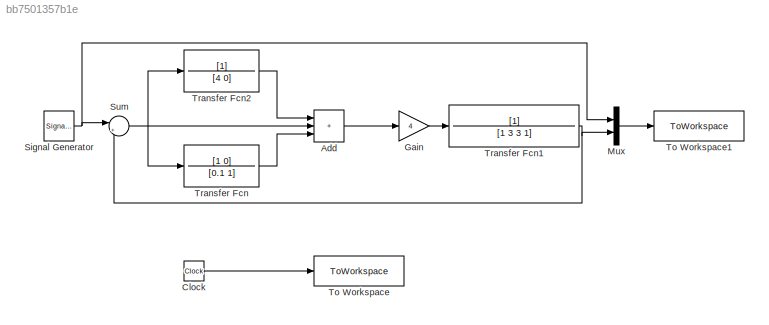
MODEL slx_bb7501357b1e
KIND model
CONFIG AbsTol = auto
CONFIG EnableMultiTasking = off
CONFIG FixedStep = auto
CONFIG MaxStep = auto
CONFIG MinStep = auto
CONFIG RelTol = 1e-3
CONFIG SampleTimeConstraint = Unconstrained
CONFIG SolverName = VariableStepAuto
CONFIG StartTime = 0.0
CONFIG StopTime = 75
BLOCK [Sum] Add
  IconShape = rectangular
  Inputs = +++
BLOCK [Clock] Clock
BLOCK [Gain] Gain
  Gain = 4
BLOCK [Mux] Mux
  DisplayOption = bar
  Inputs = 2
BLOCK [SignalGenerator] Signal Generator
  Frequency = 0.02
  WaveForm = square
BLOCK [Sum] Sum
  Inputs = |+-
BLOCK [ToWorkspace] To Workspace
  FixptAsFi = on
  MaxDataPoints = inf
  SampleTime = -1
  VariableName = time
BLOCK [ToWorkspace] To Workspace1
  FixptAsFi = on
  MaxDataPoints = inf
  SampleTime = -1
  VariableName = TOPID
BLOCK [TransferFcn] Transfer Fcn
  Denominator = [0.1 1]
  Numerator = [1 0]
BLOCK [TransferFcn] Transfer Fcn1
  Denominator = [1 3 3 1]
BLOCK [TransferFcn] Transfer Fcn2
  Denominator = [4 0]
LINE Add:1 -> Gain:1
LINE Clock:1 -> To Workspace:1
LINE Gain:1 -> Transfer Fcn1:1
LINE Mux:1 -> To Workspace1:1
NET Signal Generator:1 -> Mux:1, Sum:1
NET Sum:1 -> Add:2, Transfer Fcn2:1, Transfer Fcn:1
NET Transfer Fcn1:1 -> Mux:2, Sum:2
LINE Transfer Fcn2:1 -> Add:1
LINE Transfer Fcn:1 -> Add:3
note: NET lines group one-source signal fan-out (src -> all destinations, sorted); 1:1 wires keep LINE
